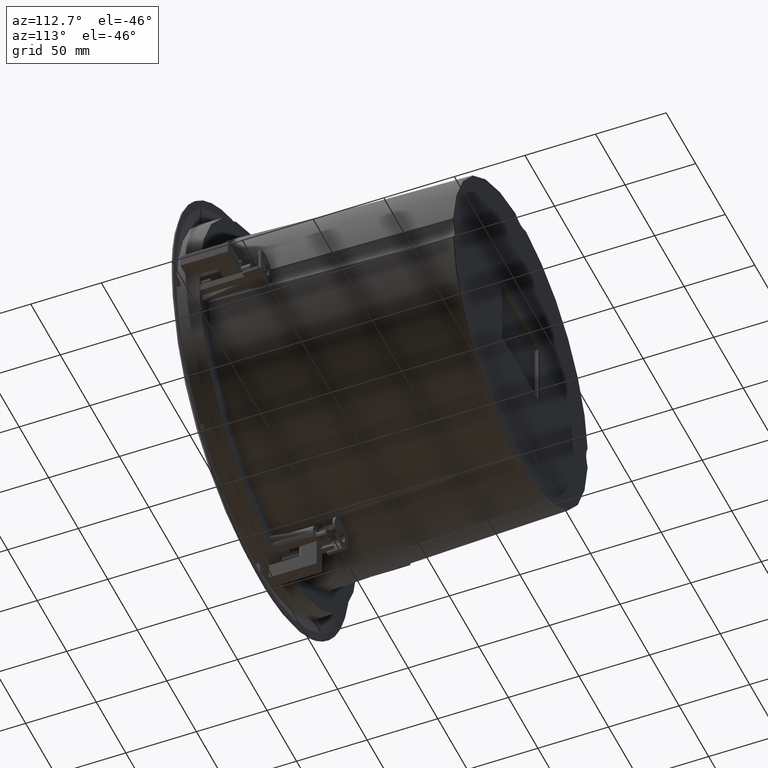
[diagram: clean part render]
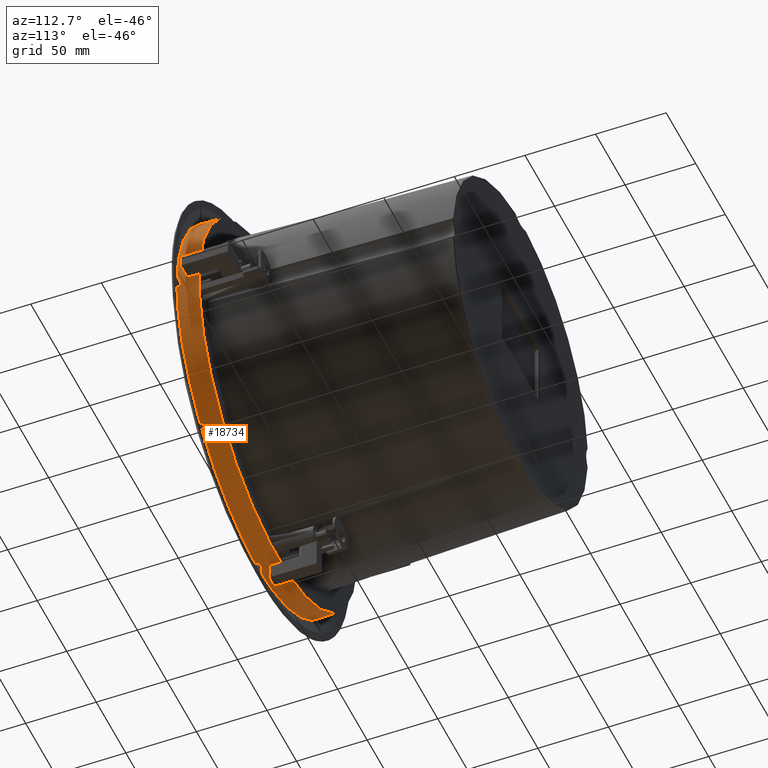
[diagram: same view with one face highlighted and labeled with its STEP entity id]
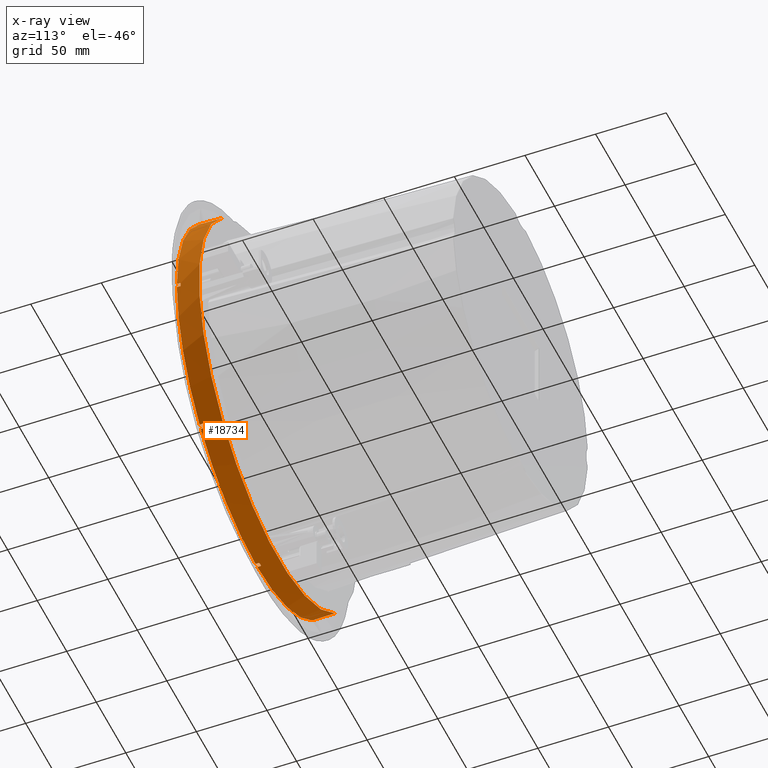
[diagram: x-ray of the same camera — body ghosted, the highlighted face saturated]
A machine part, auxiliary view. The second image highlights one B-rep face of the part: STEP entity #18734.
The next image is the same camera in x-ray: the body ghosted, the highlighted face saturated — about 0% of this face is hidden behind the body in this view.
In plain terms, the highlighted conical surface has half-angle 1 deg.
Its self-contained STEP definition (entity closure, byte-faithful):
#111 = ORIENTED_EDGE ( 'NONE', *, *, #7413, .T. ) ;
#187 = ORIENTED_EDGE ( 'NONE', *, *, #1054, .T. ) ;
#239 = VERTEX_POINT ( 'NONE', #13196 ) ;
#423 = CONICAL_SURFACE ( 'NONE', #15102, 134.7039104068993538, 0.01745329250000049806 ) ;
#543 = CIRCLE ( 'NONE', #19999, 134.6570480638571610 ) ;
#690 = CARTESIAN_POINT ( 'NONE',  ( 96.30480298100683001, -15.66020223124919575, 94.18348263744974247 ) ) ;
#787 = CARTESIAN_POINT ( 'NONE',  ( -4.880562738709880536E-14, -15.66020223124185762, -2.058148732554759069E-13 ) ) ;
#934 = CARTESIAN_POINT ( 'NONE',  ( -1.500000000003105738, -12.97546039900585590, -134.6486932479797360 ) ) ;
#1010 = DIRECTION ( 'NONE',  ( -0.7071067811865476838, -2.575609677160429317E-16, -0.7071067811865473507 ) ) ;
#1054 = EDGE_CURVE ( 'NONE', #6006, #10948, #12285, .T. ) ;
#1125 = AXIS2_PLACEMENT_3D ( 'NONE', #1370, #11335, #1586 ) ;
#1247 = CARTESIAN_POINT ( 'NONE',  ( -1.459774952280097589E-13, 1.679212324745549267E-12, 1.103175064036796902E-14 ) ) ;
#1299 = CARTESIAN_POINT ( 'NONE',  ( 134.6643149971377227, -13.87037433932412611, 1.500000060540589208 ) ) ;
#1370 = CARTESIAN_POINT ( 'NONE',  ( -1.075197015628255632E-13, -12.97546039336504364, -1.075197015628252224E-13 ) ) ;
#1567 = B_SPLINE_CURVE_WITH_KNOTS ( 'NONE', 3,
 ( #934, #15921, #9165, #5764 ),
 .UNSPECIFIED., .F., .F.,
 ( 4, 4 ),
 ( 0.0000000000000000000, 1.000000000000000000 ),
 .UNSPECIFIED. ) ;
#1586 = DIRECTION ( 'NONE',  ( -0.7071067811865453523, -7.729518064977183356E-17, -0.7071067811865496822 ) ) ;
#1703 = AXIS2_PLACEMENT_3D ( 'NONE', #1247, #8096, #14415 ) ;
#1938 = VERTEX_POINT ( 'NONE', #3322 ) ;
#2024 = ORIENTED_EDGE ( 'NONE', *, *, #11176, .F. ) ;
#2112 = EDGE_CURVE ( 'NONE', #10899, #239, #14348, .T. ) ;
#2115 = VERTEX_POINT ( 'NONE', #12680 ) ;
#2163 = DIRECTION ( 'NONE',  ( 5.715123890295924756E-16, 1.000000000000000000, -9.577690591101021377E-17 ) ) ;
#2576 = CARTESIAN_POINT ( 'NONE',  ( -94.15034390177197565, -12.97546039900607617, -96.27166424533575650 ) ) ;
#2694 = VERTEX_POINT ( 'NONE', #16448 ) ;
#2710 = AXIS2_PLACEMENT_3D ( 'NONE', #787, #3859, #13743 ) ;
#2777 = ORIENTED_EDGE ( 'NONE', *, *, #14196, .T. ) ;
#2793 = EDGE_CURVE ( 'NONE', #3365, #16887, #2824, .T. ) ;
#2824 = B_SPLINE_CURVE_WITH_KNOTS ( 'NONE', 3,
 ( #6063, #14499, #17270, #15889 ),
 .UNSPECIFIED., .F., .F.,
 ( 4, 4 ),
 ( 0.0000000000000000000, 1.000000000000000000 ),
 .UNSPECIFIED. ) ;
#2859 = DIRECTION ( 'NONE',  ( 5.715123890295924756E-16, 1.000000000000000000, -9.577690591101021377E-17 ) ) ;
#2958 = CARTESIAN_POINT ( 'NONE',  ( 1.500000060537058477, -13.87037433932475849, -134.6643149971379785 ) ) ;
#3004 = VERTEX_POINT ( 'NONE', #14819 ) ;
#3051 = ORIENTED_EDGE ( 'NONE', *, *, #2112, .T. ) ;
#3159 = DIRECTION ( 'NONE',  ( 0.01234071492572682595, -0.9998476951567393245, 0.01234071492572748167 ) ) ;
#3196 = EDGE_CURVE ( 'NONE', #20884, #18894, #7671, .T. ) ;
#3215 = VERTEX_POINT ( 'NONE', #19069 ) ;
#3237 = ORIENTED_EDGE ( 'NONE', *, *, #4540, .T. ) ;
#3322 = CARTESIAN_POINT ( 'NONE',  ( 134.6955584974055569, -15.66020223125035749, 1.499999999998673283 ) ) ;
#3365 = VERTEX_POINT ( 'NONE', #20510 ) ;
#3418 = CARTESIAN_POINT ( 'NONE',  ( 134.6643149971377511, -13.87037433932088248, -1.500000060533283719 ) ) ;
#3859 = DIRECTION ( 'NONE',  ( 5.715123890295924756E-16, 1.000000000000000000, -9.577690591101021377E-17 ) ) ;
#3935 = VERTEX_POINT ( 'NONE', #14888 ) ;
#4540 = EDGE_CURVE ( 'NONE', #239, #3935, #7869, .T. ) ;
#4611 = CARTESIAN_POINT ( 'NONE',  ( 134.6486932479792245, -12.97546039900531767, 1.500000000002600586 ) ) ;
#4758 = DIRECTION ( 'NONE',  ( 5.715123890295924756E-16, 1.000000000000000000, -9.577690591101021377E-17 ) ) ;
#4766 = AXIS2_PLACEMENT_3D ( 'NONE', #16080, #6562, #17899 ) ;
#5077 = CARTESIAN_POINT ( 'NONE',  ( 134.6486932479792813, -12.97546039900365145, -1.500000000003244516 ) ) ;
#5304 = EDGE_CURVE ( 'NONE', #17974, #10675, #543, .T. ) ;
#5421 = CIRCLE ( 'NONE', #20451, 134.7039104068993254 ) ;
#5728 = CARTESIAN_POINT ( 'NONE',  ( -94.16139010373301232, -13.87037433932482777, -96.28271053290470149 ) ) ;
#5753 = EDGE_CURVE ( 'NONE', #6802, #3365, #5421, .T. ) ;
#5764 = CARTESIAN_POINT ( 'NONE',  ( -1.499999999998859135, -15.66020223124867883, -134.6955584974108717 ) ) ;
#6006 = VERTEX_POINT ( 'NONE', #17533 ) ;
#6063 = CARTESIAN_POINT ( 'NONE',  ( 96.30480298100383152, -15.66020223125040545, -94.18348263744651661 ) ) ;
#6200 = ORIENTED_EDGE ( 'NONE', *, *, #16523, .T. ) ;
#6244 = CARTESIAN_POINT ( 'NONE',  ( 96.28271053290109194, -13.87037433932493080, 94.16139010373622398 ) ) ;
#6250 = ORIENTED_EDGE ( 'NONE', *, *, #14065, .T. ) ;
#6268 = CIRCLE ( 'NONE', #13785, 134.7039104068993538 ) ;
#6562 = DIRECTION ( 'NONE',  ( 5.715123890295924756E-16, 1.000000000000000000, -9.577690591101021377E-17 ) ) ;
#6699 = ORIENTED_EDGE ( 'NONE', *, *, #8666, .T. ) ;
#6800 = CARTESIAN_POINT ( 'NONE',  ( -2.917947165355135764E-14, -15.66020223124274580, -2.917947165355129454E-14 ) ) ;
#6802 = VERTEX_POINT ( 'NONE', #9631 ) ;
#6813 = CARTESIAN_POINT ( 'NONE',  ( -4.864123436218394579E-14, -12.97546039336593182, -4.864123436218380695E-14 ) ) ;
#6831 = VECTOR ( 'NONE', #3159, 1000.000000000000000 ) ;
#7365 = EDGE_CURVE ( 'NONE', #18894, #1938, #6268, .T. ) ;
#7375 = ORIENTED_EDGE ( 'NONE', *, *, #5753, .T. ) ;
#7413 = EDGE_CURVE ( 'NONE', #3215, #6802, #8733, .T. ) ;
#7518 = CARTESIAN_POINT ( 'NONE',  ( 96.30480298100683001, -15.66020223124919575, 94.18348263744974247 ) ) ;
#7671 = B_SPLINE_CURVE_WITH_KNOTS ( 'NONE', 3,
 ( #17243, #6244, #13946, #7518 ),
 .UNSPECIFIED., .F., .F.,
 ( 4, 4 ),
 ( 0.0000000000000000000, 1.000000000000000000 ),
 .UNSPECIFIED. ) ;
#7723 = CARTESIAN_POINT ( 'NONE',  ( 134.6955584974055569, -15.66020223125035749, 1.499999999998673283 ) ) ;
#7869 = CIRCLE ( 'NONE', #2710, 134.7039104068993254 ) ;
#7927 = CARTESIAN_POINT ( 'NONE',  ( 94.15034390177140722, -12.97546039900564274, -96.27166424533541544 ) ) ;
#7948 = CIRCLE ( 'NONE', #18153, 134.6570480638571041 ) ;
#8096 = DIRECTION ( 'NONE',  ( -5.715123890295924756E-16, -1.000000000000000000, 9.577690591101021377E-17 ) ) ;
#8117 = CARTESIAN_POINT ( 'NONE',  ( 95.25004850106360266, -15.66020223124271027, 95.25004850106336107 ) ) ;
#8131 = CARTESIAN_POINT ( 'NONE',  ( 1.500000000002670086, -12.97546039900591275, -134.6486932479793950 ) ) ;
#8186 = EDGE_CURVE ( 'NONE', #10948, #16896, #18298, .T. ) ;
#8292 = CARTESIAN_POINT ( 'NONE',  ( 96.27166424533514544, -12.97546039900530879, -94.15034390177186197 ) ) ;
#8553 = CARTESIAN_POINT ( 'NONE',  ( -95.05676097102181643, 1.724315135120946252E-12, -95.05676097102193012 ) ) ;
#8666 = EDGE_CURVE ( 'NONE', #1938, #2115, #11853, .T. ) ;
#8733 = B_SPLINE_CURVE_WITH_KNOTS ( 'NONE', 3,
 ( #5077, #3418, #10001, #16553 ),
 .UNSPECIFIED., .F., .F.,
 ( 4, 4 ),
 ( 0.0000000000000000000, 1.000000000000000000 ),
 .UNSPECIFIED. ) ;
#8973 = CIRCLE ( 'NONE', #17505, 134.6570480638571041 ) ;
#9019 = CARTESIAN_POINT ( 'NONE',  ( 94.17243634904238547, -14.76528828528330983, -96.29375677821136037 ) ) ;
#9165 = CARTESIAN_POINT ( 'NONE',  ( -1.500000060536489155, -14.76528828528349635, -134.6799367470687514 ) ) ;
#9631 = CARTESIAN_POINT ( 'NONE',  ( 134.6955584974055569, -15.66020223125041255, -1.499999999999081179 ) ) ;
#9904 = DIRECTION ( 'NONE',  ( -0.7071067811866662556, -5.153012043318119772E-17, -0.7071067811864287789 ) ) ;
#10001 = CARTESIAN_POINT ( 'NONE',  ( 134.6799367470684956, -14.76528828528140558, -1.500000060533118962 ) ) ;
#10329 = CARTESIAN_POINT ( 'NONE',  ( -1.075197015628255632E-13, -12.97546039336504364, -1.075197015628252224E-13 ) ) ;
#10500 = EDGE_LOOP ( 'NONE', ( #11265, #6200, #11337, #20163, #11499, #6699, #20371, #111, #7375, #15864, #17408, #3051, #3237, #6250, #18564, #2777, #187, #12122, #14857, #2024 ) ) ;
#10675 = VERTEX_POINT ( 'NONE', #12060 ) ;
#10835 = DIRECTION ( 'NONE',  ( 5.715123890295924756E-16, 1.000000000000000000, -9.577690591101021377E-17 ) ) ;
#10849 = CARTESIAN_POINT ( 'NONE',  ( 94.18348263744555027, -15.66020223125040545, -96.30480298100383152 ) ) ;
#10899 = VERTEX_POINT ( 'NONE', #7927 ) ;
#10942 = CIRCLE ( 'NONE', #1703, 134.4305605604763514 ) ;
#10948 = VERTEX_POINT ( 'NONE', #15738 ) ;
#11176 = EDGE_CURVE ( 'NONE', #13847, #3004, #17205, .T. ) ;
#11265 = ORIENTED_EDGE ( 'NONE', *, *, #16685, .T. ) ;
#11335 = DIRECTION ( 'NONE',  ( 5.715123890295924756E-16, 1.000000000000000000, -9.577690591101021377E-17 ) ) ;
#11337 = ORIENTED_EDGE ( 'NONE', *, *, #20233, .T. ) ;
#11355 = CARTESIAN_POINT ( 'NONE',  ( 1.499999999998562261, -15.66020223124884403, -134.6955584974107865 ) ) ;
#11476 = AXIS2_PLACEMENT_3D ( 'NONE', #12443, #10835, #17349 ) ;
#11499 = ORIENTED_EDGE ( 'NONE', *, *, #7365, .T. ) ;
#11853 = B_SPLINE_CURVE_WITH_KNOTS ( 'NONE', 3,
 ( #7723, #20783, #1299, #4611 ),
 .UNSPECIFIED., .F., .F.,
 ( 4, 4 ),
 ( 0.0000000000000000000, 1.000000000000000000 ),
 .UNSPECIFIED. ) ;
#11949 = DIRECTION ( 'NONE',  ( 5.715123890295924756E-16, 1.000000000000000000, -9.577690591101021377E-17 ) ) ;
#12051 = FACE_OUTER_BOUND ( 'NONE', #10500, .T. ) ;
#12060 = CARTESIAN_POINT ( 'NONE',  ( -1.500000000003105738, -12.97546039900585590, -134.6486932479797360 ) ) ;
#12122 = ORIENTED_EDGE ( 'NONE', *, *, #8186, .T. ) ;
#12146 = CIRCLE ( 'NONE', #11476, 134.6570480638571041 ) ;
#12285 = CIRCLE ( 'NONE', #4766, 134.7039104068993254 ) ;
#12296 = DIRECTION ( 'NONE',  ( -0.01234071492572796566, -0.9998476951567393245, -0.01234071492572729259 ) ) ;
#12443 = CARTESIAN_POINT ( 'NONE',  ( -4.864123436218394579E-14, -12.97546039336593182, -4.864123436218380695E-14 ) ) ;
#12597 = EDGE_CURVE ( 'NONE', #16887, #10899, #7948, .T. ) ;
#12641 = DIRECTION ( 'NONE',  ( -0.7071067811865422437, -7.729518064977183356E-17, -0.7071067811865529018 ) ) ;
#12680 = CARTESIAN_POINT ( 'NONE',  ( 134.6486932479792245, -12.97546039900531767, 1.500000000002600586 ) ) ;
#13196 = CARTESIAN_POINT ( 'NONE',  ( 94.18348263744555027, -15.66020223125040545, -96.30480298100383152 ) ) ;
#13743 = DIRECTION ( 'NONE',  ( -0.7071067811865301422, -2.575609677160429810E-16, -0.7071067811865648922 ) ) ;
#13758 = CARTESIAN_POINT ( 'NONE',  ( -94.15034390177197565, -12.97546039900607617, -96.27166424533575650 ) ) ;
#13785 = AXIS2_PLACEMENT_3D ( 'NONE', #6800, #4758, #19745 ) ;
#13847 = VERTEX_POINT ( 'NONE', #8553 ) ;
#13946 = CARTESIAN_POINT ( 'NONE',  ( 96.29375677821093404, -14.76528828528377879, 94.17243634904636451 ) ) ;
#14065 = EDGE_CURVE ( 'NONE', #3935, #17974, #20188, .T. ) ;
#14196 = EDGE_CURVE ( 'NONE', #10675, #6006, #1567, .T. ) ;
#14348 = B_SPLINE_CURVE_WITH_KNOTS ( 'NONE', 3,
 ( #17257, #17363, #9019, #10849 ),
 .UNSPECIFIED., .F., .F.,
 ( 4, 4 ),
 ( 0.0000000000000000000, 1.000000000000000000 ),
 .UNSPECIFIED. ) ;
#14415 = DIRECTION ( 'NONE',  ( -0.7071067811865477948, -2.464713017639896710E-16, -0.7071067811865472397 ) ) ;
#14499 = CARTESIAN_POINT ( 'NONE',  ( 96.29375677821396096, -14.76528828528301318, -94.17243634903971383 ) ) ;
#14819 = CARTESIAN_POINT ( 'NONE',  ( -95.21691200238657871, -12.97546039336588564, -95.21691200238655028 ) ) ;
#14857 = ORIENTED_EDGE ( 'NONE', *, *, #18145, .T. ) ;
#14888 = CARTESIAN_POINT ( 'NONE',  ( 1.499999999998562261, -15.66020223124884403, -134.6955584974107865 ) ) ;
#15102 = AXIS2_PLACEMENT_3D ( 'NONE', #18570, #16112, #1010 ) ;
#15712 = CARTESIAN_POINT ( 'NONE',  ( -95.25004850106383003, -15.66020223124277955, -95.25004850106392951 ) ) ;
#15738 = CARTESIAN_POINT ( 'NONE',  ( -94.18348263744955773, -15.66020223124906252, -96.30480298100739844 ) ) ;
#15864 = ORIENTED_EDGE ( 'NONE', *, *, #2793, .T. ) ;
#15889 = CARTESIAN_POINT ( 'NONE',  ( 96.27166424533514544, -12.97546039900530879, -94.15034390177186197 ) ) ;
#15921 = CARTESIAN_POINT ( 'NONE',  ( -1.500000060536671898, -13.87037433932475849, -134.6643149971380353 ) ) ;
#16080 = CARTESIAN_POINT ( 'NONE',  ( -4.880562738709880536E-14, -15.66020223124185762, -2.058148732554759069E-13 ) ) ;
#16112 = DIRECTION ( 'NONE',  ( -5.715123890295924756E-16, -1.000000000000000000, 9.577690591101021377E-17 ) ) ;
#16448 = CARTESIAN_POINT ( 'NONE',  ( 95.05676097102161748, 1.634109514370152283E-12, 95.05676097102136168 ) ) ;
#16523 = EDGE_CURVE ( 'NONE', #2694, #17125, #17856, .T. ) ;
#16553 = CARTESIAN_POINT ( 'NONE',  ( 134.6955584974055569, -15.66020223125041255, -1.499999999999081179 ) ) ;
#16685 = EDGE_CURVE ( 'NONE', #13847, #2694, #10942, .T. ) ;
#16764 = DIRECTION ( 'NONE',  ( 5.715123890295924756E-16, 1.000000000000000000, -9.577690591101021377E-17 ) ) ;
#16887 = VERTEX_POINT ( 'NONE', #8292 ) ;
#16896 = VERTEX_POINT ( 'NONE', #2576 ) ;
#16961 = CARTESIAN_POINT ( 'NONE',  ( -94.18348263744955773, -15.66020223124906252, -96.30480298100739844 ) ) ;
#17030 = DIRECTION ( 'NONE',  ( -0.7071067811865333619, -2.575609677160429810E-16, -0.7071067811865616726 ) ) ;
#17125 = VERTEX_POINT ( 'NONE', #20131 ) ;
#17205 = LINE ( 'NONE', #15712, #18560 ) ;
#17242 = CARTESIAN_POINT ( 'NONE',  ( -4.880562738709880536E-14, -15.66020223124185762, -2.058148732554759069E-13 ) ) ;
#17243 = CARTESIAN_POINT ( 'NONE',  ( 96.27166424533494649, -12.97546039900593051, 94.15034390177190460 ) ) ;
#17257 = CARTESIAN_POINT ( 'NONE',  ( 94.15034390177140722, -12.97546039900564274, -96.27166424533541544 ) ) ;
#17270 = CARTESIAN_POINT ( 'NONE',  ( 96.28271053290406201, -13.87037433932410480, -94.16139010372961593 ) ) ;
#17349 = DIRECTION ( 'NONE',  ( -0.7071067811865479058, -7.729518064977183356E-17, -0.7071067811865473507 ) ) ;
#17363 = CARTESIAN_POINT ( 'NONE',  ( 94.16139010373230178, -13.87037433932469632, -96.28271053290143300 ) ) ;
#17408 = ORIENTED_EDGE ( 'NONE', *, *, #12597, .T. ) ;
#17505 = AXIS2_PLACEMENT_3D ( 'NONE', #17872, #2859, #12641 ) ;
#17533 = CARTESIAN_POINT ( 'NONE',  ( -1.499999999998859135, -15.66020223124867883, -134.6955584974108717 ) ) ;
#17758 = CARTESIAN_POINT ( 'NONE',  ( 1.500000060536865965, -14.76528828528349635, -134.6799367470686946 ) ) ;
#17856 = LINE ( 'NONE', #8117, #6831 ) ;
#17872 = CARTESIAN_POINT ( 'NONE',  ( -4.864123436218394579E-14, -12.97546039336593182, -4.864123436218380695E-14 ) ) ;
#17876 = CIRCLE ( 'NONE', #1125, 134.6570480638571041 ) ;
#17899 = DIRECTION ( 'NONE',  ( -0.7071067811865723307, -2.575609677160429810E-16, -0.7071067811865227037 ) ) ;
#17974 = VERTEX_POINT ( 'NONE', #19386 ) ;
#18145 = EDGE_CURVE ( 'NONE', #16896, #3004, #8973, .T. ) ;
#18153 = AXIS2_PLACEMENT_3D ( 'NONE', #10329, #11949, #18457 ) ;
#18298 = B_SPLINE_CURVE_WITH_KNOTS ( 'NONE', 3,
 ( #16961, #20367, #5728, #13758 ),
 .UNSPECIFIED., .F., .F.,
 ( 4, 4 ),
 ( 0.0000000000000000000, 1.000000000000000000 ),
 .UNSPECIFIED. ) ;
#18381 = CARTESIAN_POINT ( 'NONE',  ( 96.27166424533494649, -12.97546039900593051, 94.15034390177190460 ) ) ;
#18457 = DIRECTION ( 'NONE',  ( -0.7071067811866144082, -7.729518064977183356E-17, -0.7071067811864807373 ) ) ;
#18560 = VECTOR ( 'NONE', #12296, 1000.000000000000000 ) ;
#18564 = ORIENTED_EDGE ( 'NONE', *, *, #5304, .T. ) ;
#18570 = CARTESIAN_POINT ( 'NONE',  ( -1.273102503212877569E-13, -15.66020223124274580, -2.843194961896645618E-13 ) ) ;
#18734 = ADVANCED_FACE ( 'NONE', ( #12051 ), #423, .T. ) ;
#18894 = VERTEX_POINT ( 'NONE', #690 ) ;
#19069 = CARTESIAN_POINT ( 'NONE',  ( 134.6486932479792813, -12.97546039900365145, -1.500000000003244516 ) ) ;
#19131 = EDGE_CURVE ( 'NONE', #2115, #3215, #17876, .T. ) ;
#19386 = CARTESIAN_POINT ( 'NONE',  ( 1.500000000002670086, -12.97546039900591275, -134.6486932479793950 ) ) ;
#19745 = DIRECTION ( 'NONE',  ( -0.7071067811865577868, -2.575609677160429317E-16, -0.7071067811865372477 ) ) ;
#19999 = AXIS2_PLACEMENT_3D ( 'NONE', #6813, #16764, #9904 ) ;
#20131 = CARTESIAN_POINT ( 'NONE',  ( 95.21691200238491604, -12.97546039336597623, 95.21691200238484498 ) ) ;
#20163 = ORIENTED_EDGE ( 'NONE', *, *, #3196, .T. ) ;
#20188 = B_SPLINE_CURVE_WITH_KNOTS ( 'NONE', 3,
 ( #11355, #17758, #2958, #8131 ),
 .UNSPECIFIED., .F., .F.,
 ( 4, 4 ),
 ( 0.0000000000000000000, 1.000000000000000000 ),
 .UNSPECIFIED. ) ;
#20233 = EDGE_CURVE ( 'NONE', #17125, #20884, #12146, .T. ) ;
#20367 = CARTESIAN_POINT ( 'NONE',  ( -94.17243634904315286, -14.76528828528370063, -96.29375677821458623 ) ) ;
#20371 = ORIENTED_EDGE ( 'NONE', *, *, #19131, .T. ) ;
#20451 = AXIS2_PLACEMENT_3D ( 'NONE', #17242, #2163, #17030 ) ;
#20510 = CARTESIAN_POINT ( 'NONE',  ( 96.30480298100383152, -15.66020223125040545, -94.18348263744651661 ) ) ;
#20783 = CARTESIAN_POINT ( 'NONE',  ( 134.6799367470684672, -14.76528828528302917, 1.500000060540467972 ) ) ;
#20884 = VERTEX_POINT ( 'NONE', #18381 ) ;